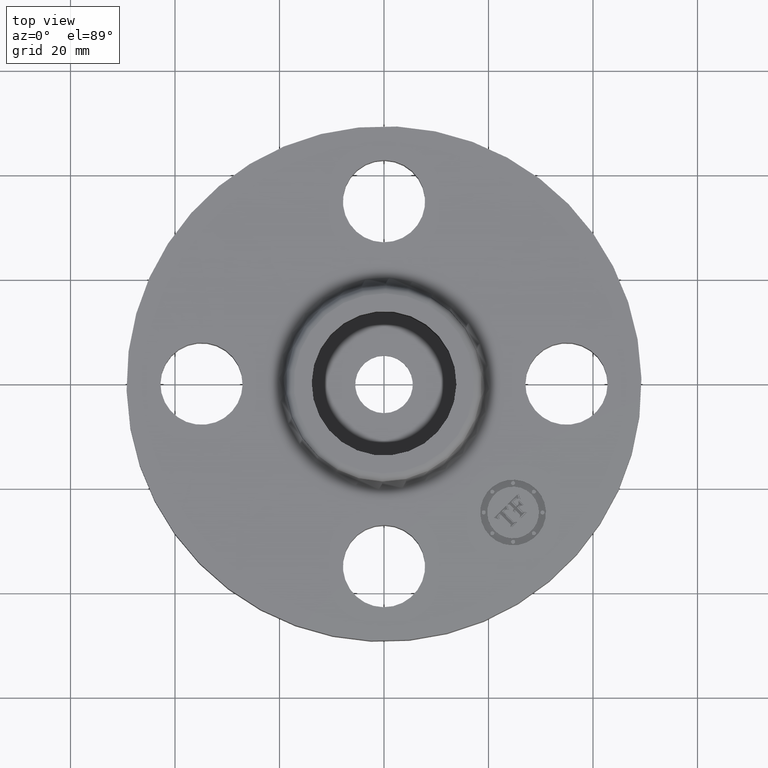
[diagram: clean part render]
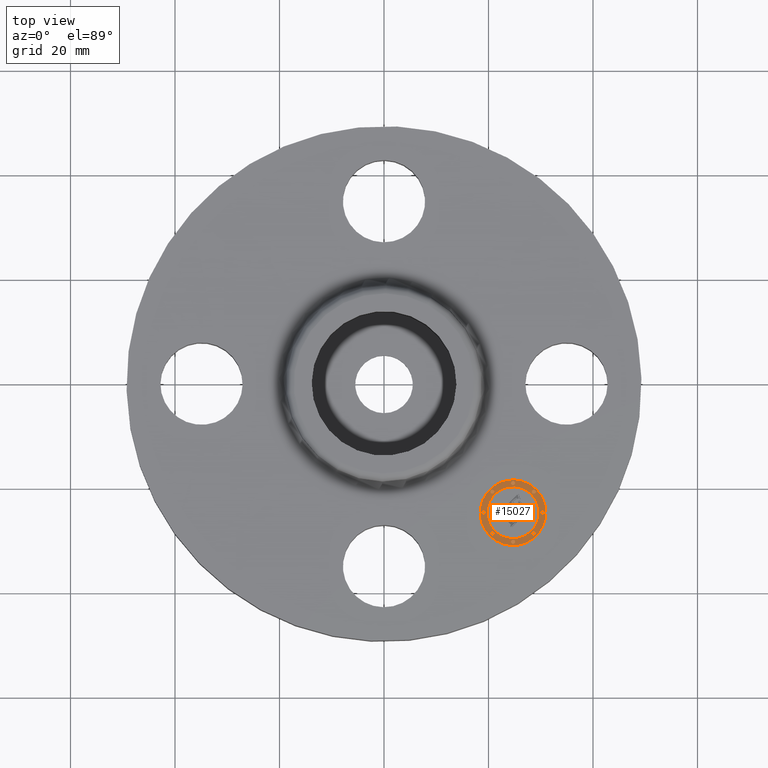
[diagram: same view with one face highlighted and labeled with its STEP entity id]
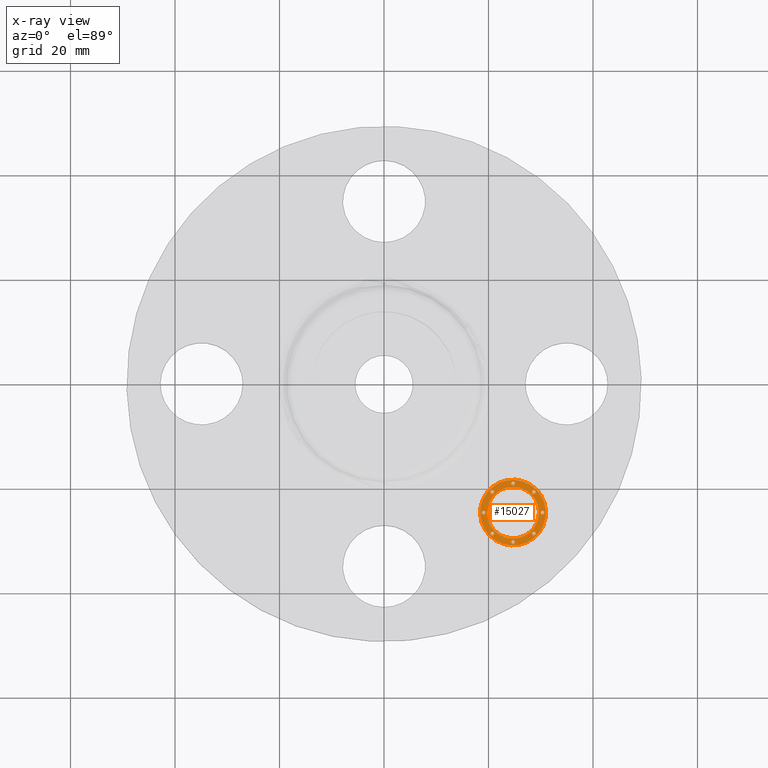
[diagram: x-ray of the same camera — body ghosted, the highlighted face saturated]
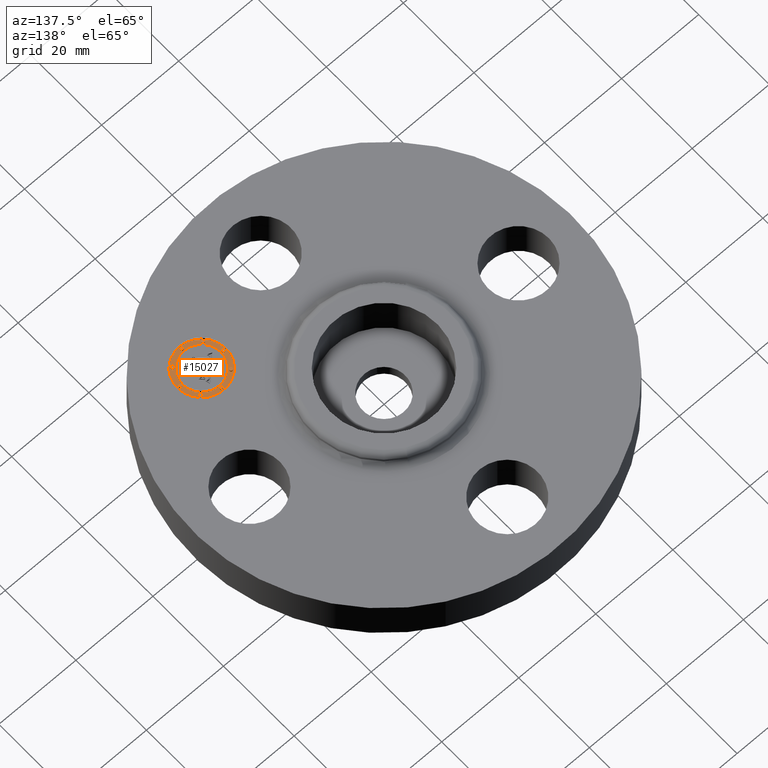
[diagram: same view with one face highlighted and labeled with its STEP entity id]
A machine part, top view. The second image highlights one B-rep face of the part: STEP entity #15027.
The next image is the same camera in x-ray: the body ghosted, the highlighted face saturated — about 0% of this face is hidden behind the body in this view.
A second angle (auxiliary view) of the same face is appended — the face is thin or edge-on in the first view.
In plain terms, the highlighted planar face has unit normal (0, -0, 1).
Its self-contained STEP definition (entity closure, byte-faithful):
#3678=AXIS2_PLACEMENT_3D('Plane Axis2P3D',#3675,#3676,#3677) ;
#14849=AXIS2_PLACEMENT_3D('Circle Axis2P3D',#14847,#14848,$) ;
#14858=AXIS2_PLACEMENT_3D('Circle Axis2P3D',#14856,#14857,$) ;
#14867=AXIS2_PLACEMENT_3D('Circle Axis2P3D',#14865,#14866,$) ;
#14876=AXIS2_PLACEMENT_3D('Circle Axis2P3D',#14874,#14875,$) ;
#14885=AXIS2_PLACEMENT_3D('Circle Axis2P3D',#14883,#14884,$) ;
#14894=AXIS2_PLACEMENT_3D('Circle Axis2P3D',#14892,#14893,$) ;
#14903=AXIS2_PLACEMENT_3D('Circle Axis2P3D',#14901,#14902,$) ;
#14912=AXIS2_PLACEMENT_3D('Circle Axis2P3D',#14910,#14911,$) ;
#14921=AXIS2_PLACEMENT_3D('Circle Axis2P3D',#14919,#14920,$) ;
#14930=AXIS2_PLACEMENT_3D('Circle Axis2P3D',#14928,#14929,$) ;
#14939=AXIS2_PLACEMENT_3D('Circle Axis2P3D',#14937,#14938,$) ;
#14948=AXIS2_PLACEMENT_3D('Circle Axis2P3D',#14946,#14947,$) ;
#14957=AXIS2_PLACEMENT_3D('Circle Axis2P3D',#14955,#14956,$) ;
#14966=AXIS2_PLACEMENT_3D('Circle Axis2P3D',#14964,#14965,$) ;
#14975=AXIS2_PLACEMENT_3D('Circle Axis2P3D',#14973,#14974,$) ;
#14984=AXIS2_PLACEMENT_3D('Circle Axis2P3D',#14982,#14983,$) ;
#14993=AXIS2_PLACEMENT_3D('Circle Axis2P3D',#14991,#14992,$) ;
#15002=AXIS2_PLACEMENT_3D('Circle Axis2P3D',#15000,#15001,$) ;
#15011=AXIS2_PLACEMENT_3D('Circle Axis2P3D',#15009,#15010,$) ;
#15020=AXIS2_PLACEMENT_3D('Circle Axis2P3D',#15018,#15019,$) ;
#3675=CARTESIAN_POINT('Axis2P3D Location',(0.,0.,0.425000000002)) ;
#14847=CARTESIAN_POINT('Axis2P3D Location',(0.972271824135,-0.972271824135,0.425000000002)) ;
#14851=CARTESIAN_POINT('Vertex',(1.14728075248,-0.797262895791,0.425000000002)) ;
#14853=CARTESIAN_POINT('Vertex',(0.797262895791,-1.14728075248,0.425000000002)) ;
#14856=CARTESIAN_POINT('Axis2P3D Location',(0.972271824135,-0.972271824135,0.425000000002)) ;
#14865=CARTESIAN_POINT('Axis2P3D Location',(0.972271824135,-0.972271824135,0.425000000002)) ;
#14869=CARTESIAN_POINT('Vertex',(0.834386001803,-1.11015764647,0.425000000002)) ;
#14871=CARTESIAN_POINT('Vertex',(1.11015764647,-0.834386001803,0.425000000002)) ;
#14874=CARTESIAN_POINT('Axis2P3D Location',(0.972271824135,-0.972271824135,0.425000000002)) ;
#14883=CARTESIAN_POINT('Axis2P3D Location',(0.815824448797,-0.815824448797,0.425000000002)) ;
#14887=CARTESIAN_POINT('Vertex',(0.805217847079,-0.826431050515,0.425000000002)) ;
#14889=CARTESIAN_POINT('Vertex',(0.826431050515,-0.805217847079,0.425000000002)) ;
#14892=CARTESIAN_POINT('Axis2P3D Location',(0.815824448797,-0.815824448797,0.425000000002)) ;
#14901=CARTESIAN_POINT('Axis2P3D Location',(1.12871919947,-0.815824448797,0.425000000002)) ;
#14905=CARTESIAN_POINT('Vertex',(1.11811259776,-0.826431050515,0.425000000002)) ;
#14907=CARTESIAN_POINT('Vertex',(1.13932580119,-0.805217847079,0.425000000002)) ;
#14910=CARTESIAN_POINT('Axis2P3D Location',(1.12871919947,-0.815824448797,0.425000000002)) ;
#14919=CARTESIAN_POINT('Axis2P3D Location',(0.972271824135,-0.751021824134,0.425000000002)) ;
#14923=CARTESIAN_POINT('Vertex',(0.961665222418,-0.761628425852,0.425000000002)) ;
#14925=CARTESIAN_POINT('Vertex',(0.982878425853,-0.740415222417,0.425000000002)) ;
#14928=CARTESIAN_POINT('Axis2P3D Location',(0.972271824135,-0.751021824134,0.425000000002)) ;
#14937=CARTESIAN_POINT('Axis2P3D Location',(1.12871919947,-1.12871919947,0.425000000002)) ;
#14941=CARTESIAN_POINT('Vertex',(1.11811259776,-1.13932580119,0.425000000002)) ;
#14943=CARTESIAN_POINT('Vertex',(1.13932580119,-1.11811259776,0.425000000002)) ;
#14946=CARTESIAN_POINT('Axis2P3D Location',(1.12871919947,-1.12871919947,0.425000000002)) ;
#14955=CARTESIAN_POINT('Axis2P3D Location',(1.19352182414,-0.972271824135,0.425000000002)) ;
#14959=CARTESIAN_POINT('Vertex',(1.18291522242,-0.982878425853,0.425000000002)) ;
#14961=CARTESIAN_POINT('Vertex',(1.20412842585,-0.961665222418,0.425000000002)) ;
#14964=CARTESIAN_POINT('Axis2P3D Location',(1.19352182414,-0.972271824135,0.425000000002)) ;
#14973=CARTESIAN_POINT('Axis2P3D Location',(0.815824448797,-1.12871919947,0.425000000002)) ;
#14977=CARTESIAN_POINT('Vertex',(0.826431050515,-1.11811259776,0.425000000002)) ;
#14979=CARTESIAN_POINT('Vertex',(0.805217847079,-1.13932580119,0.425000000002)) ;
#14982=CARTESIAN_POINT('Axis2P3D Location',(0.815824448797,-1.12871919947,0.425000000002)) ;
#14991=CARTESIAN_POINT('Axis2P3D Location',(0.751021824134,-0.972271824135,0.425000000002)) ;
#14995=CARTESIAN_POINT('Vertex',(0.761628425852,-0.961665222418,0.425000000002)) ;
#14997=CARTESIAN_POINT('Vertex',(0.740415222417,-0.982878425853,0.425000000002)) ;
#15000=CARTESIAN_POINT('Axis2P3D Location',(0.751021824134,-0.972271824135,0.425000000002)) ;
#15009=CARTESIAN_POINT('Axis2P3D Location',(0.972271824135,-1.19352182414,0.425000000002)) ;
#15013=CARTESIAN_POINT('Vertex',(0.982878425853,-1.18291522242,0.425000000002)) ;
#15015=CARTESIAN_POINT('Vertex',(0.961665222418,-1.20412842585,0.425000000002)) ;
#15018=CARTESIAN_POINT('Axis2P3D Location',(0.972271824135,-1.19352182414,0.425000000002)) ;
#3676=DIRECTION('Axis2P3D Direction',(0.,-0.,0.0393700787402)) ;
#3677=DIRECTION('Axis2P3D XDirection',(0.027838849653,0.027838849653,0.)) ;
#14848=DIRECTION('Axis2P3D Direction',(0.,-0.,0.0393700787402)) ;
#14857=DIRECTION('Axis2P3D Direction',(0.,-0.,0.0393700787402)) ;
#14866=DIRECTION('Axis2P3D Direction',(0.,-0.,0.0393700787402)) ;
#14875=DIRECTION('Axis2P3D Direction',(0.,-0.,0.0393700787402)) ;
#14884=DIRECTION('Axis2P3D Direction',(0.,-0.,0.0393700787402)) ;
#14893=DIRECTION('Axis2P3D Direction',(0.,-0.,0.0393700787402)) ;
#14902=DIRECTION('Axis2P3D Direction',(0.,-0.,0.0393700787402)) ;
#14911=DIRECTION('Axis2P3D Direction',(0.,-0.,0.0393700787402)) ;
#14920=DIRECTION('Axis2P3D Direction',(0.,-0.,0.0393700787402)) ;
#14929=DIRECTION('Axis2P3D Direction',(0.,-0.,0.0393700787402)) ;
#14938=DIRECTION('Axis2P3D Direction',(0.,-0.,0.0393700787402)) ;
#14947=DIRECTION('Axis2P3D Direction',(0.,-0.,0.0393700787402)) ;
#14956=DIRECTION('Axis2P3D Direction',(0.,-0.,0.0393700787402)) ;
#14965=DIRECTION('Axis2P3D Direction',(0.,-0.,0.0393700787402)) ;
#14974=DIRECTION('Axis2P3D Direction',(0.,-0.,0.0393700787402)) ;
#14983=DIRECTION('Axis2P3D Direction',(0.,-0.,0.0393700787402)) ;
#14992=DIRECTION('Axis2P3D Direction',(0.,-0.,0.0393700787402)) ;
#15001=DIRECTION('Axis2P3D Direction',(0.,-0.,0.0393700787402)) ;
#15010=DIRECTION('Axis2P3D Direction',(0.,-0.,0.0393700787402)) ;
#15019=DIRECTION('Axis2P3D Direction',(0.,-0.,0.0393700787402)) ;
#14862=ORIENTED_EDGE('',*,*,#14855,.T.) ;
#14863=ORIENTED_EDGE('',*,*,#14860,.T.) ;
#14880=ORIENTED_EDGE('',*,*,#14873,.F.) ;
#14881=ORIENTED_EDGE('',*,*,#14878,.F.) ;
#14898=ORIENTED_EDGE('',*,*,#14891,.F.) ;
#14899=ORIENTED_EDGE('',*,*,#14896,.F.) ;
#14916=ORIENTED_EDGE('',*,*,#14909,.F.) ;
#14917=ORIENTED_EDGE('',*,*,#14914,.F.) ;
#14934=ORIENTED_EDGE('',*,*,#14927,.F.) ;
#14935=ORIENTED_EDGE('',*,*,#14932,.F.) ;
#14952=ORIENTED_EDGE('',*,*,#14945,.F.) ;
#14953=ORIENTED_EDGE('',*,*,#14950,.F.) ;
#14970=ORIENTED_EDGE('',*,*,#14963,.F.) ;
#14971=ORIENTED_EDGE('',*,*,#14968,.F.) ;
#14988=ORIENTED_EDGE('',*,*,#14981,.F.) ;
#14989=ORIENTED_EDGE('',*,*,#14986,.F.) ;
#15006=ORIENTED_EDGE('',*,*,#14999,.F.) ;
#15007=ORIENTED_EDGE('',*,*,#15004,.F.) ;
#15024=ORIENTED_EDGE('',*,*,#15017,.F.) ;
#15025=ORIENTED_EDGE('',*,*,#15022,.F.) ;
#14882=FACE_BOUND('',#14879,.T.) ;
#14900=FACE_BOUND('',#14897,.T.) ;
#14918=FACE_BOUND('',#14915,.T.) ;
#14936=FACE_BOUND('',#14933,.T.) ;
#14954=FACE_BOUND('',#14951,.T.) ;
#14972=FACE_BOUND('',#14969,.T.) ;
#14990=FACE_BOUND('',#14987,.T.) ;
#15008=FACE_BOUND('',#15005,.T.) ;
#15026=FACE_BOUND('',#15023,.T.) ;
#15027=ADVANCED_FACE('PartBody',(#14864,#14882,#14900,#14918,#14936,#14954,#14972,#14990,#15008,#15026),#3679,.T.) ;
#14850=CIRCLE('generated circle',#14849,0.247500000001) ;
#14859=CIRCLE('generated circle',#14858,0.247500000001) ;
#14868=CIRCLE('generated circle',#14867,0.195000000001) ;
#14877=CIRCLE('generated circle',#14876,0.195000000001) ;
#14886=CIRCLE('generated circle',#14885,0.0150000000001) ;
#14895=CIRCLE('generated circle',#14894,0.0150000000001) ;
#14904=CIRCLE('generated circle',#14903,0.0150000000001) ;
#14913=CIRCLE('generated circle',#14912,0.0150000000001) ;
#14922=CIRCLE('generated circle',#14921,0.0150000000001) ;
#14931=CIRCLE('generated circle',#14930,0.0150000000001) ;
#14940=CIRCLE('generated circle',#14939,0.0150000000001) ;
#14949=CIRCLE('generated circle',#14948,0.0150000000001) ;
#14958=CIRCLE('generated circle',#14957,0.0150000000001) ;
#14967=CIRCLE('generated circle',#14966,0.0150000000001) ;
#14976=CIRCLE('generated circle',#14975,0.0150000000001) ;
#14985=CIRCLE('generated circle',#14984,0.0150000000001) ;
#14994=CIRCLE('generated circle',#14993,0.0150000000001) ;
#15003=CIRCLE('generated circle',#15002,0.0150000000001) ;
#15012=CIRCLE('generated circle',#15011,0.0150000000001) ;
#15021=CIRCLE('generated circle',#15020,0.0150000000001) ;
#14855=EDGE_CURVE('',#14852,#14854,#14850,.T.) ;
#14860=EDGE_CURVE('',#14854,#14852,#14859,.T.) ;
#14873=EDGE_CURVE('',#14870,#14872,#14868,.T.) ;
#14878=EDGE_CURVE('',#14872,#14870,#14877,.T.) ;
#14891=EDGE_CURVE('',#14888,#14890,#14886,.T.) ;
#14896=EDGE_CURVE('',#14890,#14888,#14895,.T.) ;
#14909=EDGE_CURVE('',#14906,#14908,#14904,.T.) ;
#14914=EDGE_CURVE('',#14908,#14906,#14913,.T.) ;
#14927=EDGE_CURVE('',#14924,#14926,#14922,.T.) ;
#14932=EDGE_CURVE('',#14926,#14924,#14931,.T.) ;
#14945=EDGE_CURVE('',#14942,#14944,#14940,.T.) ;
#14950=EDGE_CURVE('',#14944,#14942,#14949,.T.) ;
#14963=EDGE_CURVE('',#14960,#14962,#14958,.T.) ;
#14968=EDGE_CURVE('',#14962,#14960,#14967,.T.) ;
#14981=EDGE_CURVE('',#14978,#14980,#14976,.T.) ;
#14986=EDGE_CURVE('',#14980,#14978,#14985,.T.) ;
#14999=EDGE_CURVE('',#14996,#14998,#14994,.T.) ;
#15004=EDGE_CURVE('',#14998,#14996,#15003,.T.) ;
#15017=EDGE_CURVE('',#15014,#15016,#15012,.T.) ;
#15022=EDGE_CURVE('',#15016,#15014,#15021,.T.) ;
#14861=EDGE_LOOP('',(#14862,#14863)) ;
#14879=EDGE_LOOP('',(#14880,#14881)) ;
#14897=EDGE_LOOP('',(#14898,#14899)) ;
#14915=EDGE_LOOP('',(#14916,#14917)) ;
#14933=EDGE_LOOP('',(#14934,#14935)) ;
#14951=EDGE_LOOP('',(#14952,#14953)) ;
#14969=EDGE_LOOP('',(#14970,#14971)) ;
#14987=EDGE_LOOP('',(#14988,#14989)) ;
#15005=EDGE_LOOP('',(#15006,#15007)) ;
#15023=EDGE_LOOP('',(#15024,#15025)) ;
#14864=FACE_OUTER_BOUND('',#14861,.T.) ;
#3679=PLANE('',#3678) ;
#14852=VERTEX_POINT('',#14851) ;
#14854=VERTEX_POINT('',#14853) ;
#14870=VERTEX_POINT('',#14869) ;
#14872=VERTEX_POINT('',#14871) ;
#14888=VERTEX_POINT('',#14887) ;
#14890=VERTEX_POINT('',#14889) ;
#14906=VERTEX_POINT('',#14905) ;
#14908=VERTEX_POINT('',#14907) ;
#14924=VERTEX_POINT('',#14923) ;
#14926=VERTEX_POINT('',#14925) ;
#14942=VERTEX_POINT('',#14941) ;
#14944=VERTEX_POINT('',#14943) ;
#14960=VERTEX_POINT('',#14959) ;
#14962=VERTEX_POINT('',#14961) ;
#14978=VERTEX_POINT('',#14977) ;
#14980=VERTEX_POINT('',#14979) ;
#14996=VERTEX_POINT('',#14995) ;
#14998=VERTEX_POINT('',#14997) ;
#15014=VERTEX_POINT('',#15013) ;
#15016=VERTEX_POINT('',#15015) ;